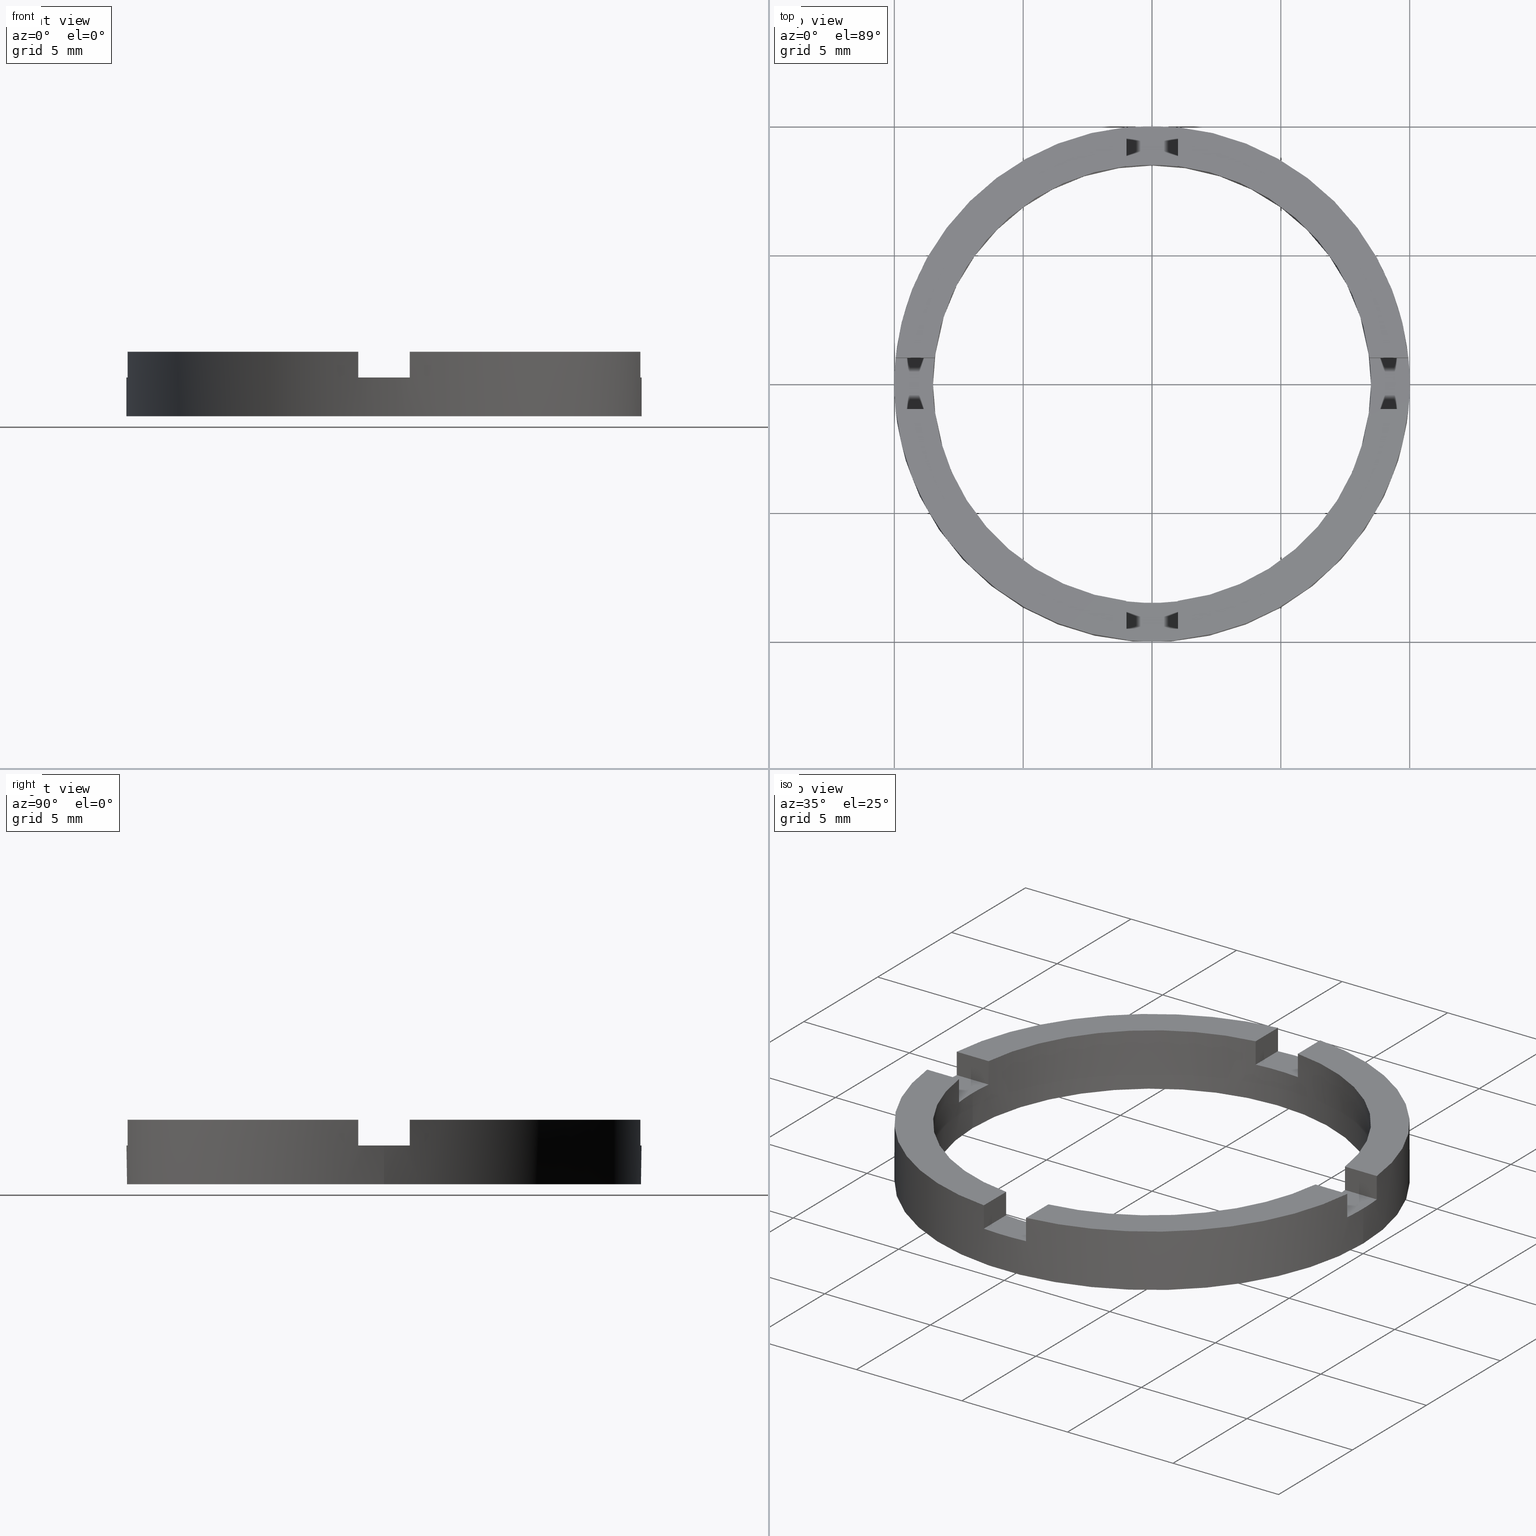
[diagram: canonical four-view strip — front | top / right | iso, engineering-drawing reading convention]
A machine part, canonical four-view strip (front | top / right | iso — engineering-drawing reading convention). The complete STEP part file that produces these views, byte-faithful:
ISO-10303-21;
HEADER;
FILE_DESCRIPTION (( 'STEP AP203' ),
    '1' );
FILE_NAME ('514047.step',
    '2024-12-26T02:32:29',
    ( 'MSI' ),
    ( '' ),
    'SwSTEP 2.0',
    'SolidWorks 2020',
    '' );
FILE_SCHEMA (( 'CONFIG_CONTROL_DESIGN' ));
ENDSEC;

DATA;
#1 = CIRCLE ( 'NONE', #529, 8.500000000000000000 ) ;
#2 = DIRECTION ( 'NONE',  ( -0.000000000000000000, -0.000000000000000000, -1.000000000000000000 ) ) ;
#3 = LINE ( 'NONE', #426, #544 ) ;
#4 = LINE ( 'NONE', #633, #526 ) ;
#5 = CYLINDRICAL_SURFACE ( 'NONE', #543, 10.00000000000000000 ) ;
#6 = CARTESIAN_POINT ( 'NONE',  ( 8.440971508067070417, 0.9999999999999672484, 1.500000000000000000 ) ) ;
#7 = LINE ( 'NONE', #25, #17 ) ;
#8 = DIRECTION ( 'NONE',  ( 0.000000000000000000, 0.000000000000000000, 1.000000000000000000 ) ) ;
#9 = CIRCLE ( 'NONE', #425, 10.00000000000000000 ) ;
#10 = DIRECTION ( 'NONE',  ( 1.000000000000000000, 0.000000000000000000, 0.000000000000000000 ) ) ;
#11 = AXIS2_PLACEMENT_3D ( 'NONE', #410, #569, #116 ) ;
#12 = CIRCLE ( 'NONE', #11, 10.00000000000000000 ) ;
#13 = LINE ( 'NONE', #228, #32 ) ;
#14 = FACE_OUTER_BOUND ( 'NONE', #464, .T. ) ;
#15 = LINE ( 'NONE', #646, #293 ) ;
#16 = CARTESIAN_POINT ( 'NONE',  ( -8.500000000000000000, 0.000000000000000000, 0.000000000000000000 ) ) ;
#17 = VECTOR ( 'NONE', #467, 1000.000000000000000 ) ;
#18 = AXIS2_PLACEMENT_3D ( 'NONE', #420, #508, #773 ) ;
#19 = VECTOR ( 'NONE', #775, 1000.000000000000000 ) ;
#20 = ADVANCED_FACE ( 'NONE', ( #321 ), #248, .T. ) ;
#21 = PERSON_AND_ORGANIZATION_ROLE ( 'design_supplier' ) ;
#22 = LINE ( 'NONE', #624, #532 ) ;
#23 = FACE_BOUND ( 'NONE', #195, .T. ) ;
#24 = LINE ( 'NONE', #771, #547 ) ;
#25 = CARTESIAN_POINT ( 'NONE',  ( 1.000000000000001332, -8.440971508067066864, 1.500000000000000000 ) ) ;
#26 = VECTOR ( 'NONE', #185, 1000.000000000000000 ) ;
#27 = LINE ( 'NONE', #733, #519 ) ;
#28 = DIRECTION ( 'NONE',  ( -0.000000000000000000, 0.000000000000000000, 1.000000000000000000 ) ) ;
#29 = CIRCLE ( 'NONE', #242, 8.500000000000000000 ) ;
#30 = LINE ( 'NONE', #477, #541 ) ;
#31 = DIRECTION ( 'NONE',  ( 1.000000000000000000, 0.000000000000000000, 0.000000000000000000 ) ) ;
#32 = VECTOR ( 'NONE', #221, 1000.000000000000000 ) ;
#33 = LINE ( 'NONE', #341, #264 ) ;
#34 = CARTESIAN_POINT ( 'NONE',  ( 0.000000000000000000, 0.000000000000000000, 2.500000000000000000 ) ) ;
#35 = FACE_OUTER_BOUND ( 'NONE', #377, .T. ) ;
#36 = DIRECTION ( 'NONE',  ( 1.000000000000000000, 0.000000000000000000, 0.000000000000000000 ) ) ;
#37 = CIRCLE ( 'NONE', #759, 8.500000000000000000 ) ;
#38 = VECTOR ( 'NONE', #699, 1000.000000000000000 ) ;
#39 = LINE ( 'NONE', #644, #551 ) ;
#40 = ADVANCED_FACE ( 'NONE', ( #607 ), #745, .T. ) ;
#41 = EDGE_CURVE ( 'NONE', #380, #243, #94, .T. ) ;
#42 = AXIS2_PLACEMENT_3D ( 'NONE', #230, #314, #262 ) ;
#43 = COORDINATED_UNIVERSAL_TIME_OFFSET ( 8, 0, .AHEAD. ) ;
#44 = CARTESIAN_POINT ( 'NONE',  ( 0.000000000000000000, 0.000000000000000000, 2.500000000000000000 ) ) ;
#45 = DIRECTION ( 'NONE',  ( -0.000000000000000000, -0.000000000000000000, 1.000000000000000000 ) ) ;
#46 = APPROVAL_DATE_TIME ( #567, #441 ) ;
#47 = ADVANCED_FACE ( 'NONE', ( #95 ), #533, .T. ) ;
#48 = PERSON_AND_ORGANIZATION ( #490, #312 ) ;
#49 = EDGE_CURVE ( 'NONE', #409, #141, #575, .T. ) ;
#50 = LOCAL_TIME ( 10, 32, 29.00000000000000000, #565 ) ;
#51 = AXIS2_PLACEMENT_3D ( 'NONE', #521, #59, #201 ) ;
#52 = APPROVAL_DATE_TIME ( #587, #72 ) ;
#53 = CARTESIAN_POINT ( 'NONE',  ( -9.949874371066195877, 1.000000000000036193, 1.500000000000000000 ) ) ;
#54 = DIRECTION ( 'NONE',  ( -0.000000000000000000, -0.000000000000000000, -1.000000000000000000 ) ) ;
#55 = APPROVAL_ROLE ( '' ) ;
#56 = APPROVAL_PERSON_ORGANIZATION ( #80, #441, #177 ) ;
#57 = EDGE_CURVE ( 'NONE', #217, #641, #584, .T. ) ;
#58 = PERSON_AND_ORGANIZATION ( #490, #312 ) ;
#59 = DIRECTION ( 'NONE',  ( 0.000000000000000000, 0.000000000000000000, 1.000000000000000000 ) ) ;
#60 = LOCAL_TIME ( 10, 32, 29.00000000000000000, #339 ) ;
#61 = EDGE_LOOP ( 'NONE', ( #346, #226, #414, #430, #433, #407 ) ) ;
#62 = AXIS2_PLACEMENT_3D ( 'NONE', #136, #626, #695 ) ;
#63 = VECTOR ( 'NONE', #735, 1000.000000000000000 ) ;
#64 = LOCAL_TIME ( 10, 32, 29.00000000000000000, #563 ) ;
#65 = ORIENTED_EDGE ( 'NONE', *, *, #702, .F. ) ;
#66 = DIRECTION ( 'NONE',  ( 1.000000000000000000, 0.000000000000000000, 0.000000000000000000 ) ) ;
#67 = SHAPE_DEFINITION_REPRESENTATION ( #438, #209 ) ;
#68 = ORIENTED_EDGE ( 'NONE', *, *, #713, .F. ) ;
#69 = CARTESIAN_POINT ( 'NONE',  ( -0.9999999999999986677, -9.949874371066199430, 1.500000000000000000 ) ) ;
#70 = EDGE_LOOP ( 'NONE', ( #98, #710, #100, #708 ) ) ;
#71 = VECTOR ( 'NONE', #171, 1000.000000000000000 ) ;
#72 = APPROVAL ( #559, 'δָ��' ) ;
#73 = CALENDAR_DATE ( 2024, 26, 12 ) ;
#74 = VECTOR ( 'NONE', #294, 1000.000000000000000 ) ;
#75 = CARTESIAN_POINT ( 'NONE',  ( 0.000000000000000000, 0.000000000000000000, 2.500000000000000000 ) ) ;
#76 = DATE_AND_TIME ( #574, #311 ) ;
#77 = VERTEX_POINT ( 'NONE', #482 ) ;
#78 = PERSON_AND_ORGANIZATION ( #490, #312 ) ;
#79 = LINE ( 'NONE', #520, #337 ) ;
#80 = PERSON_AND_ORGANIZATION ( #490, #312 ) ;
#81 = LINE ( 'NONE', #562, #71 ) ;
#82 = DIRECTION ( 'NONE',  ( 0.000000000000000000, 1.000000000000000000, -0.000000000000000000 ) ) ;
#83 = DATE_AND_TIME ( #571, #50 ) ;
#84 = CIRCLE ( 'NONE', #504, 8.500000000000000000 ) ;
#85 = CIRCLE ( 'NONE', #769, 8.500000000000000000 ) ;
#86 = CARTESIAN_POINT ( 'NONE',  ( 0.000000000000000000, 0.000000000000000000, 0.000000000000000000 ) ) ;
#87 = CARTESIAN_POINT ( 'NONE',  ( 1.000000000000001332, 9.949874371066199430, 1.500000000000000000 ) ) ;
#88 = EDGE_LOOP ( 'NONE', ( #680, #155, #709, #698 ) ) ;
#89 = VERTEX_POINT ( 'NONE', #685 ) ;
#90 = ORIENTED_EDGE ( 'NONE', *, *, #306, .F. ) ;
#91 = ORIENTED_EDGE ( 'NONE', *, *, #539, .T. ) ;
#92 = CARTESIAN_POINT ( 'NONE',  ( 1.000000000000001332, 0.000000000000000000, 1.500000000000000000 ) ) ;
#93 = EDGE_CURVE ( 'NONE', #241, #767, #323, .T. ) ;
#94 = LINE ( 'NONE', #315, #590 ) ;
#95 = FACE_OUTER_BOUND ( 'NONE', #611, .T. ) ;
#96 = DIRECTION ( 'NONE',  ( -1.000000000000000000, 0.000000000000000000, 0.000000000000000000 ) ) ;
#97 = VECTOR ( 'NONE', #783, 1000.000000000000000 ) ;
#98 = ORIENTED_EDGE ( 'NONE', *, *, #637, .F. ) ;
#99 = DIRECTION ( 'NONE',  ( 0.000000000000000000, 1.000000000000000000, -0.000000000000000000 ) ) ;
#100 = ORIENTED_EDGE ( 'NONE', *, *, #364, .T. ) ;
#101 = ADVANCED_FACE ( 'NONE', ( #345 ), #579, .F. ) ;
#102 = VECTOR ( 'NONE', #256, 1000.000000000000000 ) ;
#103 = EDGE_CURVE ( 'NONE', #393, #327, #81, .T. ) ;
#104 = LINE ( 'NONE', #737, #620 ) ;
#105 = AXIS2_PLACEMENT_3D ( 'NONE', #629, #8, #215 ) ;
#106 = VECTOR ( 'NONE', #2, 1000.000000000000000 ) ;
#107 = DIRECTION ( 'NONE',  ( -0.000000000000000000, -0.000000000000000000, 1.000000000000000000 ) ) ;
#108 = FACE_OUTER_BOUND ( 'NONE', #762, .T. ) ;
#109 = ADVANCED_FACE ( 'NONE', ( #332 ), #379, .T. ) ;
#110 = SECURITY_CLASSIFICATION_LEVEL ( 'unclassified' ) ;
#111 = EDGE_CURVE ( 'NONE', #400, #418, #593, .T. ) ;
#112 = CARTESIAN_POINT ( 'NONE',  ( 0.000000000000000000, 0.000000000000000000, 1.500000000000000000 ) ) ;
#113 = AXIS2_PLACEMENT_3D ( 'NONE', #475, #281, #357 ) ;
#114 = PLANE ( 'NONE',  #671 ) ;
#115 = DIRECTION ( 'NONE',  ( 1.000000000000000000, 0.000000000000000000, 0.000000000000000000 ) ) ;
#116 = DIRECTION ( 'NONE',  ( 1.000000000000000000, 0.000000000000000000, 0.000000000000000000 ) ) ;
#117 = CC_DESIGN_APPROVAL ( #754, ( #164 ) ) ;
#118 = DIRECTION ( 'NONE',  ( 0.000000000000000000, -0.000000000000000000, -1.000000000000000000 ) ) ;
#119 = DIRECTION ( 'NONE',  ( 1.000000000000000000, 0.000000000000000000, 0.000000000000000000 ) ) ;
#120 = CARTESIAN_POINT ( 'NONE',  ( 0.000000000000000000, 0.000000000000000000, 2.500000000000000000 ) ) ;
#121 = AXIS2_PLACEMENT_3D ( 'NONE', #347, #355, #273 ) ;
#122 = ORIENTED_EDGE ( 'NONE', *, *, #702, .T. ) ;
#123 = ORIENTED_EDGE ( 'NONE', *, *, #259, .T. ) ;
#124 = EDGE_LOOP ( 'NONE', ( #383, #739, #178, #134 ) ) ;
#125 = DIRECTION ( 'NONE',  ( 0.000000000000000000, 1.000000000000000000, -0.000000000000000000 ) ) ;
#126 = ORIENTED_EDGE ( 'NONE', *, *, #259, .F. ) ;
#127 = ORIENTED_EDGE ( 'NONE', *, *, #57, .T. ) ;
#128 = VERTEX_POINT ( 'NONE', #214 ) ;
#129 = FACE_OUTER_BOUND ( 'NONE', #124, .T. ) ;
#130 = EDGE_LOOP ( 'NONE', ( #154, #123, #161, #166, #683, #697, #374, #411, #449, #681, #417, #163 ) ) ;
#131 = EDGE_CURVE ( 'NONE', #406, #159, #325, .T. ) ;
#132 = DIRECTION ( 'NONE',  ( 1.000000000000000000, 0.000000000000000000, 0.000000000000000000 ) ) ;
#133 = ORIENTED_EDGE ( 'NONE', *, *, #550, .T. ) ;
#134 = ORIENTED_EDGE ( 'NONE', *, *, #103, .T. ) ;
#135 = ORIENTED_EDGE ( 'NONE', *, *, #111, .T. ) ;
#136 = CARTESIAN_POINT ( 'NONE',  ( 3.751339516799841397E-15, 0.9999999999999988898, 1.500000000000000000 ) ) ;
#137 = ORIENTED_EDGE ( 'NONE', *, *, #111, .F. ) ;
#138 = DIRECTION ( 'NONE',  ( 0.000000000000000000, 0.000000000000000000, -1.000000000000000000 ) ) ;
#139 = CARTESIAN_POINT ( 'NONE',  ( -0.9999999999999986677, -9.949874371066199430, 1.500000000000000000 ) ) ;
#140 = EDGE_LOOP ( 'NONE', ( #334, #751, #650, #157 ) ) ;
#141 = VERTEX_POINT ( 'NONE', #660 ) ;
#142 = ORIENTED_EDGE ( 'NONE', *, *, #456, .F. ) ;
#143 = ORIENTED_EDGE ( 'NONE', *, *, #627, .F. ) ;
#144 = DIRECTION ( 'NONE',  ( -0.000000000000000000, -0.000000000000000000, -1.000000000000000000 ) ) ;
#145 = AXIS2_PLACEMENT_3D ( 'NONE', #474, #210, #670 ) ;
#146 = ORIENTED_EDGE ( 'NONE', *, *, #220, .F. ) ;
#147 = ORIENTED_EDGE ( 'NONE', *, *, #772, .F. ) ;
#148 = DIRECTION ( 'NONE',  ( 1.000000000000000000, 0.000000000000000000, 0.000000000000000000 ) ) ;
#149 = ORIENTED_EDGE ( 'NONE', *, *, #180, .T. ) ;
#150 = ORIENTED_EDGE ( 'NONE', *, *, #213, .T. ) ;
#151 = ORIENTED_EDGE ( 'NONE', *, *, #766, .F. ) ;
#152 = CARTESIAN_POINT ( 'NONE',  ( 0.000000000000000000, 0.000000000000000000, 1.500000000000000000 ) ) ;
#153 = EDGE_CURVE ( 'NONE', #159, #767, #585, .T. ) ;
#154 = ORIENTED_EDGE ( 'NONE', *, *, #233, .F. ) ;
#155 = ORIENTED_EDGE ( 'NONE', *, *, #370, .F. ) ;
#156 = DIRECTION ( 'NONE',  ( 1.000000000000000000, 0.000000000000000000, 0.000000000000000000 ) ) ;
#157 = ORIENTED_EDGE ( 'NONE', *, *, #734, .T. ) ;
#158 = CARTESIAN_POINT ( 'NONE',  ( -0.9999999999999986677, 9.949874371066199430, 2.500000000000000000 ) ) ;
#159 = VERTEX_POINT ( 'NONE', #675 ) ;
#160 = ORIENTED_EDGE ( 'NONE', *, *, #572, .T. ) ;
#161 = ORIENTED_EDGE ( 'NONE', *, *, #299, .F. ) ;
#162 = ORIENTED_EDGE ( 'NONE', *, *, #747, .T. ) ;
#163 = ORIENTED_EDGE ( 'NONE', *, *, #103, .F. ) ;
#164 = SECURITY_CLASSIFICATION ( '', '', #110 ) ;
#165 = CARTESIAN_POINT ( 'NONE',  ( 0.000000000000000000, 0.000000000000000000, 1.500000000000000000 ) ) ;
#166 = ORIENTED_EDGE ( 'NONE', *, *, #572, .F. ) ;
#167 = VERTEX_POINT ( 'NONE', #514 ) ;
#168 = DIRECTION ( 'NONE',  ( -0.000000000000000000, 0.000000000000000000, 1.000000000000000000 ) ) ;
#169 = AXIS2_PLACEMENT_3D ( 'NONE', #112, #168, #183 ) ;
#170 = ORIENTED_EDGE ( 'NONE', *, *, #756, .F. ) ;
#171 = DIRECTION ( 'NONE',  ( -0.000000000000000000, -0.000000000000000000, 1.000000000000000000 ) ) ;
#172 = ADVANCED_FACE ( 'NONE', ( #613 ), #250, .F. ) ;
#173 = DATE_TIME_ROLE ( 'creation_date' ) ;
#174 = DIRECTION ( 'NONE',  ( -1.000000000000000000, 0.000000000000000000, 0.000000000000000000 ) ) ;
#175 = VERTEX_POINT ( 'NONE', #527 ) ;
#176 = ORIENTED_EDGE ( 'NONE', *, *, #632, .T. ) ;
#177 = APPROVAL_ROLE ( '' ) ;
#178 = ORIENTED_EDGE ( 'NONE', *, *, #461, .F. ) ;
#179 = ADVANCED_FACE ( 'NONE', ( #588 ), #483, .T. ) ;
#180 = EDGE_CURVE ( 'NONE', #243, #390, #356, .T. ) ;
#181 = EDGE_CURVE ( 'NONE', #77, #141, #84, .T. ) ;
#182 = ORIENTED_EDGE ( 'NONE', *, *, #552, .T. ) ;
#183 = DIRECTION ( 'NONE',  ( 1.000000000000000000, 0.000000000000000000, 0.000000000000000000 ) ) ;
#184 = EDGE_LOOP ( 'NONE', ( #126, #151, #427, #655, #696, #408, #236, #149, #603, #90, #160, #147 ) ) ;
#185 = DIRECTION ( 'NONE',  ( -0.000000000000000000, -0.000000000000000000, -1.000000000000000000 ) ) ;
#186 = ORIENTED_EDGE ( 'NONE', *, *, #299, .T. ) ;
#187 = CARTESIAN_POINT ( 'NONE',  ( -0.9999999999999986677, 0.000000000000000000, 1.500000000000000000 ) ) ;
#188 = EDGE_LOOP ( 'NONE', ( #191, #137 ) ) ;
#189 = AXIS2_PLACEMENT_3D ( 'NONE', #257, #545, #453 ) ;
#190 = DIRECTION ( 'NONE',  ( 0.000000000000000000, -0.000000000000000000, -1.000000000000000000 ) ) ;
#191 = ORIENTED_EDGE ( 'NONE', *, *, #213, .F. ) ;
#192 = CARTESIAN_POINT ( 'NONE',  ( 0.000000000000000000, 0.000000000000000000, 1.500000000000000000 ) ) ;
#193 = ORIENTED_EDGE ( 'NONE', *, *, #181, .T. ) ;
#194 = CARTESIAN_POINT ( 'NONE',  ( -0.9999999999999986677, 0.000000000000000000, 1.500000000000000000 ) ) ;
#195 = EDGE_LOOP ( 'NONE', ( #186, #437 ) ) ;
#196 = ORIENTED_EDGE ( 'NONE', *, *, #180, .F. ) ;
#197 = ORIENTED_EDGE ( 'NONE', *, *, #93, .T. ) ;
#198 = ADVANCED_FACE ( 'NONE', ( #614 ), #666, .F. ) ;
#199 = PLANE ( 'NONE',  #263 ) ;
#200 = DIRECTION ( 'NONE',  ( -0.000000000000000000, -0.000000000000000000, 1.000000000000000000 ) ) ;
#201 = DIRECTION ( 'NONE',  ( 1.000000000000000000, 0.000000000000000000, -0.000000000000000000 ) ) ;
#202 = ORIENTED_EDGE ( 'NONE', *, *, #628, .F. ) ;
#203 = DIRECTION ( 'NONE',  ( 1.000000000000000000, -3.729655473350134464E-15, 0.000000000000000000 ) ) ;
#204 = CARTESIAN_POINT ( 'NONE',  ( 0.000000000000000000, 0.000000000000000000, 2.500000000000000000 ) ) ;
#205 = CARTESIAN_POINT ( 'NONE',  ( 0.000000000000000000, 0.000000000000000000, 2.500000000000000000 ) ) ;
#206 =( GEOMETRIC_REPRESENTATION_CONTEXT ( 3 ) GLOBAL_UNCERTAINTY_ASSIGNED_CONTEXT ( ( #625 ) ) GLOBAL_UNIT_ASSIGNED_CONTEXT ( ( #507, #419, #468 ) ) REPRESENTATION_CONTEXT ( 'NONE', 'WORKASPACE' ) );
#207 = CARTESIAN_POINT ( 'NONE',  ( 0.000000000000000000, 0.000000000000000000, 1.500000000000000000 ) ) ;
#208 = CARTESIAN_POINT ( 'NONE',  ( -3.729655473350139197E-15, -1.000000000000001110, 2.500000000000000000 ) ) ;
#209 = ADVANCED_BREP_SHAPE_REPRESENTATION ( '514047', ( #606, #331 ), #206 ) ;
#210 = DIRECTION ( 'NONE',  ( -0.000000000000000000, 0.000000000000000000, 1.000000000000000000 ) ) ;
#211 = EDGE_LOOP ( 'NONE', ( #730, #423, #416, #731, #701, #386, #721, #385, #723, #378, #447, #150 ) ) ;
#212 = AXIS2_PLACEMENT_3D ( 'NONE', #192, #509, #36 ) ;
#213 = EDGE_CURVE ( 'NONE', #418, #400, #576, .T. ) ;
#214 = CARTESIAN_POINT ( 'NONE',  ( -9.949874371066202983, -0.9999999999999640288, 1.500000000000000000 ) ) ;
#215 = DIRECTION ( 'NONE',  ( 1.000000000000000000, 0.000000000000000000, -0.000000000000000000 ) ) ;
#216 = DIRECTION ( 'NONE',  ( -0.000000000000000000, 0.000000000000000000, 1.000000000000000000 ) ) ;
#217 = VERTEX_POINT ( 'NONE', #469 ) ;
#218 = ORIENTED_EDGE ( 'NONE', *, *, #637, .T. ) ;
#219 = EDGE_CURVE ( 'NONE', #373, #609, #336, .T. ) ;
#220 = EDGE_CURVE ( 'NONE', #647, #692, #79, .T. ) ;
#221 = DIRECTION ( 'NONE',  ( -0.000000000000000000, -0.000000000000000000, 1.000000000000000000 ) ) ;
#222 = CARTESIAN_POINT ( 'NONE',  ( 0.000000000000000000, 0.000000000000000000, 1.500000000000000000 ) ) ;
#223 = ADVANCED_FACE ( 'NONE', ( #342 ), #435, .T. ) ;
#224 = PRODUCT_DEFINITION_FORMATION_WITH_SPECIFIED_SOURCE ( '�κ�', '', #782, .NOT_KNOWN. ) ;
#225 = DIRECTION ( 'NONE',  ( 0.000000000000000000, 1.000000000000000000, -0.000000000000000000 ) ) ;
#226 = ORIENTED_EDGE ( 'NONE', *, *, #766, .T. ) ;
#227 = DATE_TIME_ROLE ( 'classification_date' ) ;
#228 = CARTESIAN_POINT ( 'NONE',  ( -9.949874371066202983, -0.9999999999999640288, 1.500000000000000000 ) ) ;
#229 = PERSON_AND_ORGANIZATION_ROLE ( 'classification_officer' ) ;
#230 = CARTESIAN_POINT ( 'NONE',  ( 3.751339516799841397E-15, 0.9999999999999988898, 1.500000000000000000 ) ) ;
#231 = ORIENTED_EDGE ( 'NONE', *, *, #247, .T. ) ;
#232 = CARTESIAN_POINT ( 'NONE',  ( 1.000000000000001332, -9.949874371066199430, 1.500000000000000000 ) ) ;
#233 = EDGE_CURVE ( 'NONE', #678, #393, #85, .T. ) ;
#234 = DIRECTION ( 'NONE',  ( 0.000000000000000000, 0.000000000000000000, 1.000000000000000000 ) ) ;
#235 = AXIS2_PLACEMENT_3D ( 'NONE', #396, #462, #752 ) ;
#236 = ORIENTED_EDGE ( 'NONE', *, *, #41, .T. ) ;
#237 = DIRECTION ( 'NONE',  ( 1.000000000000000000, 0.000000000000000000, 0.000000000000000000 ) ) ;
#238 = DIRECTION ( 'NONE',  ( -0.000000000000000000, -0.000000000000000000, 1.000000000000000000 ) ) ;
#239 = APPLICATION_CONTEXT ( 'configuration controlled 3d designs of mechanical parts and assemblies' ) ;
#240 = DIRECTION ( 'NONE',  ( -0.000000000000000000, -0.000000000000000000, 1.000000000000000000 ) ) ;
#241 = VERTEX_POINT ( 'NONE', #679 ) ;
#242 = AXIS2_PLACEMENT_3D ( 'NONE', #222, #330, #580 ) ;
#243 = VERTEX_POINT ( 'NONE', #252 ) ;
#244 = EDGE_CURVE ( 'NONE', #694, #768, #344, .T. ) ;
#245 = DIRECTION ( 'NONE',  ( 1.000000000000000000, 0.000000000000000000, -0.000000000000000000 ) ) ;
#246 = ORIENTED_EDGE ( 'NONE', *, *, #255, .F. ) ;
#247 = EDGE_CURVE ( 'NONE', #175, #672, #104, .T. ) ;
#248 = PLANE ( 'NONE',  #599 ) ;
#249 = AXIS2_PLACEMENT_3D ( 'NONE', #445, #592, #138 ) ;
#250 = PLANE ( 'NONE',  #249 ) ;
#251 = DIRECTION ( 'NONE',  ( 1.000000000000000000, 0.000000000000000000, 0.000000000000000000 ) ) ;
#252 = CARTESIAN_POINT ( 'NONE',  ( -0.9999999999999986677, 8.440971508067066864, 2.500000000000000000 ) ) ;
#253 = CC_DESIGN_PERSON_AND_ORGANIZATION_ASSIGNMENT ( #324, #229, ( #164 ) ) ;
#254 = CARTESIAN_POINT ( 'NONE',  ( 0.000000000000000000, 0.000000000000000000, 2.500000000000000000 ) ) ;
#255 = EDGE_CURVE ( 'NONE', #167, #436, #621, .T. ) ;
#256 = DIRECTION ( 'NONE',  ( 0.000000000000000000, 1.000000000000000000, -0.000000000000000000 ) ) ;
#257 = CARTESIAN_POINT ( 'NONE',  ( 0.000000000000000000, 0.000000000000000000, 1.500000000000000000 ) ) ;
#258 = DIRECTION ( 'NONE',  ( 0.000000000000000000, 0.000000000000000000, 1.000000000000000000 ) ) ;
#259 = EDGE_CURVE ( 'NONE', #678, #581, #361, .T. ) ;
#260 = DIRECTION ( 'NONE',  ( 1.000000000000000000, 0.000000000000000000, 0.000000000000000000 ) ) ;
#261 = EDGE_CURVE ( 'NONE', #472, #399, #615, .T. ) ;
#262 = DIRECTION ( 'NONE',  ( 1.000000000000000000, -3.751339516799845342E-15, 0.000000000000000000 ) ) ;
#263 = AXIS2_PLACEMENT_3D ( 'NONE', #289, #366, #245 ) ;
#264 = VECTOR ( 'NONE', #99, 1000.000000000000000 ) ;
#265 = CIRCLE ( 'NONE', #715, 10.00000000000000000 ) ;
#266 = CARTESIAN_POINT ( 'NONE',  ( -0.9999999999999986677, -9.949874371066199430, 2.500000000000000000 ) ) ;
#267 = FACE_OUTER_BOUND ( 'NONE', #88, .T. ) ;
#268 = CYLINDRICAL_SURFACE ( 'NONE', #375, 10.00000000000000000 ) ;
#269 = ADVANCED_FACE ( 'NONE', ( #363 ), #743, .T. ) ;
#270 = PRODUCT_RELATED_PRODUCT_CATEGORY ( 'detail', '', ( #782 ) ) ;
#271 = AXIS2_PLACEMENT_3D ( 'NONE', #204, #443, #525 ) ;
#272 = CIRCLE ( 'NONE', #300, 10.00000000000000000 ) ;
#273 = DIRECTION ( 'NONE',  ( 1.000000000000000000, -3.729655473350134464E-15, 0.000000000000000000 ) ) ;
#274 = CIRCLE ( 'NONE', #286, 10.00000000000000000 ) ;
#275 = LINE ( 'NONE', #432, #19 ) ;
#276 = CARTESIAN_POINT ( 'NONE',  ( -8.500000000000000000, 0.000000000000000000, 2.500000000000000000 ) ) ;
#277 = FACE_OUTER_BOUND ( 'NONE', #130, .T. ) ;
#278 = CC_DESIGN_APPROVAL ( #441, ( #510 ) ) ;
#279 = PLANE ( 'NONE',  #121 ) ;
#280 = VECTOR ( 'NONE', #602, 1000.000000000000000 ) ;
#281 = DIRECTION ( 'NONE',  ( -3.729655473350134464E-15, -1.000000000000000000, 0.000000000000000000 ) ) ;
#282 = CARTESIAN_POINT ( 'NONE',  ( -3.729655473350139197E-15, -1.000000000000001110, 1.500000000000000000 ) ) ;
#283 = CIRCLE ( 'NONE', #450, 8.500000000000000000 ) ;
#284 = MECHANICAL_CONTEXT ( 'NONE', #239, 'mechanical' ) ;
#285 = CIRCLE ( 'NONE', #498, 8.500000000000000000 ) ;
#286 = AXIS2_PLACEMENT_3D ( 'NONE', #556, #28, #10 ) ;
#287 = CIRCLE ( 'NONE', #742, 8.500000000000000000 ) ;
#288 = ADVANCED_FACE ( 'NONE', ( #108 ), #554, .T. ) ;
#289 = CARTESIAN_POINT ( 'NONE',  ( 0.000000000000000000, 0.000000000000000000, 2.500000000000000000 ) ) ;
#290 = VECTOR ( 'NONE', #758, 1000.000000000000000 ) ;
#291 = DIRECTION ( 'NONE',  ( 1.000000000000000000, 0.000000000000000000, 0.000000000000000000 ) ) ;
#292 = FACE_OUTER_BOUND ( 'NONE', #188, .T. ) ;
#293 = VECTOR ( 'NONE', #421, 1000.000000000000000 ) ;
#294 = DIRECTION ( 'NONE',  ( 1.000000000000000000, -3.751339516799845342E-15, 0.000000000000000000 ) ) ;
#295 = VECTOR ( 'NONE', #349, 1000.000000000000000 ) ;
#296 = DIRECTION ( 'NONE',  ( -1.000000000000000000, 0.000000000000000000, 0.000000000000000000 ) ) ;
#297 = VECTOR ( 'NONE', #225, 1000.000000000000000 ) ;
#298 = CIRCLE ( 'NONE', #617, 10.00000000000000000 ) ;
#299 = EDGE_CURVE ( 'NONE', #649, #581, #618, .T. ) ;
#300 = AXIS2_PLACEMENT_3D ( 'NONE', #577, #654, #724 ) ;
#301 = LINE ( 'NONE', #457, #38 ) ;
#302 = DIRECTION ( 'NONE',  ( 0.000000000000000000, 0.000000000000000000, -1.000000000000000000 ) ) ;
#303 = LINE ( 'NONE', #92, #297 ) ;
#304 = CARTESIAN_POINT ( 'NONE',  ( 9.949874371066195877, -1.000000000000038192, 2.500000000000000000 ) ) ;
#305 = LINE ( 'NONE', #693, #553 ) ;
#306 = EDGE_CURVE ( 'NONE', #329, #403, #367, .T. ) ;
#307 = CARTESIAN_POINT ( 'NONE',  ( 8.440971508067063311, -1.000000000000032641, 1.500000000000000000 ) ) ;
#308 = AXIS2_PLACEMENT_3D ( 'NONE', #648, #118, #31 ) ;
#309 = CARTESIAN_POINT ( 'NONE',  ( 8.500000000000000000, 1.040949779275250140E-15, 2.500000000000000000 ) ) ;
#310 = PERSON_AND_ORGANIZATION ( #490, #312 ) ;
#311 = LOCAL_TIME ( 10, 32, 29.00000000000000000, #328 ) ;
#312 = ORGANIZATION ( 'δָ��', 'δָ��', '' ) ;
#313 = CARTESIAN_POINT ( 'NONE',  ( -0.9999999999999986677, 0.000000000000000000, 2.500000000000000000 ) ) ;
#314 = DIRECTION ( 'NONE',  ( -3.751339516799845342E-15, -1.000000000000000000, 0.000000000000000000 ) ) ;
#315 = CARTESIAN_POINT ( 'NONE',  ( -0.9999999999999986677, 8.440971508067066864, 1.500000000000000000 ) ) ;
#316 = DIRECTION ( 'NONE',  ( 0.000000000000000000, 0.000000000000000000, 1.000000000000000000 ) ) ;
#317 = PERSON_AND_ORGANIZATION ( #490, #312 ) ;
#318 = DIRECTION ( 'NONE',  ( 1.000000000000000000, -3.751339516799845342E-15, 0.000000000000000000 ) ) ;
#319 = APPROVAL_PERSON_ORGANIZATION ( #570, #72, #704 ) ;
#320 = CALENDAR_DATE ( 2024, 26, 12 ) ;
#321 = FACE_OUTER_BOUND ( 'NONE', #442, .T. ) ;
#322 = LOCAL_TIME ( 10, 32, 29.00000000000000000, #43 ) ;
#323 = LINE ( 'NONE', #738, #97 ) ;
#324 = PERSON_AND_ORGANIZATION ( #490, #312 ) ;
#325 = LINE ( 'NONE', #6, #598 ) ;
#326 = DIRECTION ( 'NONE',  ( 0.000000000000000000, -0.000000000000000000, -1.000000000000000000 ) ) ;
#327 = VERTEX_POINT ( 'NONE', #415 ) ;
#328 = COORDINATED_UNIVERSAL_TIME_OFFSET ( 8, 0, .AHEAD. ) ;
#329 = VERTEX_POINT ( 'NONE', #564 ) ;
#330 = DIRECTION ( 'NONE',  ( 0.000000000000000000, -0.000000000000000000, -1.000000000000000000 ) ) ;
#331 = AXIS2_PLACEMENT_3D ( 'NONE', #503, #573, #651 ) ;
#332 = FACE_OUTER_BOUND ( 'NONE', #486, .T. ) ;
#333 = DIRECTION ( 'NONE',  ( 0.000000000000000000, 0.000000000000000000, 1.000000000000000000 ) ) ;
#334 = ORIENTED_EDGE ( 'NONE', *, *, #364, .F. ) ;
#335 = DATE_AND_TIME ( #595, #322 ) ;
#336 = LINE ( 'NONE', #53, #591 ) ;
#337 = VECTOR ( 'NONE', #776, 1000.000000000000000 ) ;
#338 = ADVANCED_FACE ( 'NONE', ( #368 ), #114, .T. ) ;
#339 = COORDINATED_UNIVERSAL_TIME_OFFSET ( 8, 0, .AHEAD. ) ;
#340 = ORIENTED_EDGE ( 'NONE', *, *, #689, .T. ) ;
#341 = CARTESIAN_POINT ( 'NONE',  ( -0.9999999999999986677, 0.000000000000000000, 2.500000000000000000 ) ) ;
#342 = FACE_OUTER_BOUND ( 'NONE', #140, .T. ) ;
#343 = DIRECTION ( 'NONE',  ( 1.000000000000000000, 1.243449787580175483E-14, 0.000000000000000000 ) ) ;
#344 = LINE ( 'NONE', #313, #600 ) ;
#345 = FACE_OUTER_BOUND ( 'NONE', #184, .T. ) ;
#346 = ORIENTED_EDGE ( 'NONE', *, *, #765, .F. ) ;
#347 = CARTESIAN_POINT ( 'NONE',  ( -3.729655473350139197E-15, -1.000000000000001110, 1.500000000000000000 ) ) ;
#348 = ORIENTED_EDGE ( 'NONE', *, *, #502, .T. ) ;
#349 = DIRECTION ( 'NONE',  ( -0.000000000000000000, -0.000000000000000000, -1.000000000000000000 ) ) ;
#350 = DESIGN_CONTEXT ( 'detailed design', #717, 'design' ) ;
#351 = EDGE_LOOP ( 'NONE', ( #674, #182, #135, #690, #725, #687, #388, #143, #454, #398, #170, #491 ) ) ;
#352 = AXIS2_PLACEMENT_3D ( 'NONE', #622, #746, #691 ) ;
#353 = ORIENTED_EDGE ( 'NONE', *, *, #49, .F. ) ;
#354 = ORIENTED_EDGE ( 'NONE', *, *, #244, .F. ) ;
#355 = DIRECTION ( 'NONE',  ( -3.729655473350134464E-15, -1.000000000000000000, 0.000000000000000000 ) ) ;
#356 = CIRCLE ( 'NONE', #749, 8.500000000000000000 ) ;
#357 = DIRECTION ( 'NONE',  ( 1.000000000000000000, -3.729655473350134464E-15, 0.000000000000000000 ) ) ;
#358 = CARTESIAN_POINT ( 'NONE',  ( 0.000000000000000000, 0.000000000000000000, 2.500000000000000000 ) ) ;
#359 = ORIENTED_EDGE ( 'NONE', *, *, #719, .F. ) ;
#360 = DIRECTION ( 'NONE',  ( 1.000000000000000000, 0.000000000000000000, 0.000000000000000000 ) ) ;
#361 = LINE ( 'NONE', #309, #106 ) ;
#362 = CC_DESIGN_PERSON_AND_ORGANIZATION_ASSIGNMENT ( #310, #493, ( #510 ) ) ;
#363 = FACE_OUTER_BOUND ( 'NONE', #61, .T. ) ;
#364 = EDGE_CURVE ( 'NONE', #380, #605, #623, .T. ) ;
#365 = VECTOR ( 'NONE', #619, 1000.000000000000000 ) ;
#366 = DIRECTION ( 'NONE',  ( 0.000000000000000000, 0.000000000000000000, 1.000000000000000000 ) ) ;
#367 = CIRCLE ( 'NONE', #308, 8.500000000000000000 ) ;
#368 = FACE_OUTER_BOUND ( 'NONE', #70, .T. ) ;
#369 = CARTESIAN_POINT ( 'NONE',  ( -10.00000000000000000, 0.000000000000000000, 0.000000000000000000 ) ) ;
#370 = EDGE_CURVE ( 'NONE', #77, #436, #7, .T. ) ;
#371 = AXIS2_PLACEMENT_3D ( 'NONE', #757, #216, #630 ) ;
#372 = CARTESIAN_POINT ( 'NONE',  ( -8.440971508067063311, 1.000000000000030642, 1.500000000000000000 ) ) ;
#373 = VERTEX_POINT ( 'NONE', #506 ) ;
#374 = ORIENTED_EDGE ( 'NONE', *, *, #456, .T. ) ;
#375 = AXIS2_PLACEMENT_3D ( 'NONE', #358, #54, #296 ) ;
#376 = DIRECTION ( 'NONE',  ( 1.000000000000000000, -3.729655473350134464E-15, 0.000000000000000000 ) ) ;
#377 = EDGE_LOOP ( 'NONE', ( #635, #391, #657, #197 ) ) ;
#378 = ORIENTED_EDGE ( 'NONE', *, *, #673, .F. ) ;
#379 = PLANE ( 'NONE',  #189 ) ;
#380 = VERTEX_POINT ( 'NONE', #631 ) ;
#381 = EDGE_CURVE ( 'NONE', #380, #175, #29, .T. ) ;
#382 = ORIENTED_EDGE ( 'NONE', *, *, #429, .T. ) ;
#383 = ORIENTED_EDGE ( 'NONE', *, *, #511, .T. ) ;
#384 = AXIS2_PLACEMENT_3D ( 'NONE', #770, #535, #302 ) ;
#385 = ORIENTED_EDGE ( 'NONE', *, *, #394, .F. ) ;
#386 = ORIENTED_EDGE ( 'NONE', *, *, #502, .F. ) ;
#387 = ORIENTED_EDGE ( 'NONE', *, *, #57, .F. ) ;
#388 = ORIENTED_EDGE ( 'NONE', *, *, #550, .F. ) ;
#389 = DIRECTION ( 'NONE',  ( 1.000000000000000000, -1.509903313490213211E-14, 0.000000000000000000 ) ) ;
#390 = VERTEX_POINT ( 'NONE', #446 ) ;
#391 = ORIENTED_EDGE ( 'NONE', *, *, #131, .F. ) ;
#392 = CC_DESIGN_DATE_AND_TIME_ASSIGNMENT ( #335, #173, ( #510 ) ) ;
#393 = VERTEX_POINT ( 'NONE', #307 ) ;
#394 = EDGE_CURVE ( 'NONE', #217, #694, #9, .T. ) ;
#395 = ORIENTED_EDGE ( 'NONE', *, *, #458, .T. ) ;
#396 = CARTESIAN_POINT ( 'NONE',  ( 0.000000000000000000, 0.000000000000000000, 2.500000000000000000 ) ) ;
#397 = ADVANCED_FACE ( 'NONE', ( #516 ), #5, .T. ) ;
#398 = ORIENTED_EDGE ( 'NONE', *, *, #220, .T. ) ;
#399 = VERTEX_POINT ( 'NONE', #304 ) ;
#400 = VERTEX_POINT ( 'NONE', #616 ) ;
#401 = ORIENTED_EDGE ( 'NONE', *, *, #394, .T. ) ;
#402 = CARTESIAN_POINT ( 'NONE',  ( 1.000000000000001332, 9.949874371066199430, 2.500000000000000000 ) ) ;
#403 = VERTEX_POINT ( 'NONE', #372 ) ;
#404 = ADVANCED_FACE ( 'NONE', ( #267 ), #439, .F. ) ;
#405 = CARTESIAN_POINT ( 'NONE',  ( 1.000000000000001332, -8.440971508067066864, 2.500000000000000000 ) ) ;
#406 = VERTEX_POINT ( 'NONE', #736 ) ;
#407 = ORIENTED_EDGE ( 'NONE', *, *, #740, .T. ) ;
#408 = ORIENTED_EDGE ( 'NONE', *, *, #381, .F. ) ;
#409 = VERTEX_POINT ( 'NONE', #69 ) ;
#410 = CARTESIAN_POINT ( 'NONE',  ( 0.000000000000000000, 0.000000000000000000, 2.500000000000000000 ) ) ;
#411 = ORIENTED_EDGE ( 'NONE', *, *, #528, .F. ) ;
#412 = EDGE_CURVE ( 'NONE', #409, #694, #522, .T. ) ;
#413 = ADVANCED_FACE ( 'NONE', ( #292, #23 ), #777, .F. ) ;
#414 = ORIENTED_EDGE ( 'NONE', *, *, #233, .T. ) ;
#415 = CARTESIAN_POINT ( 'NONE',  ( 8.440971508067063311, -1.000000000000032641, 2.500000000000000000 ) ) ;
#416 = ORIENTED_EDGE ( 'NONE', *, *, #261, .T. ) ;
#417 = ORIENTED_EDGE ( 'NONE', *, *, #628, .T. ) ;
#418 = VERTEX_POINT ( 'NONE', #369 ) ;
#419 =( NAMED_UNIT ( * ) PLANE_ANGLE_UNIT ( ) SI_UNIT ( $, .RADIAN. ) );
#420 = CARTESIAN_POINT ( 'NONE',  ( 0.000000000000000000, 0.000000000000000000, 0.000000000000000000 ) ) ;
#421 = DIRECTION ( 'NONE',  ( -0.000000000000000000, -0.000000000000000000, -1.000000000000000000 ) ) ;
#422 = APPROVAL_STATUS ( 'not_yet_approved' ) ;
#423 = ORIENTED_EDGE ( 'NONE', *, *, #434, .F. ) ;
#424 = ADVANCED_FACE ( 'NONE', ( #14 ), #199, .T. ) ;
#425 = AXIS2_PLACEMENT_3D ( 'NONE', #205, #688, #610 ) ;
#426 = CARTESIAN_POINT ( 'NONE',  ( 1.000000000000001332, 0.000000000000000000, 2.500000000000000000 ) ) ;
#427 = ORIENTED_EDGE ( 'NONE', *, *, #131, .T. ) ;
#428 = CLOSED_SHELL ( 'NONE', ( #652, #397, #424, #47, #288, #642, #500, #101, #413, #179, #404, #109, #753, #774, #269, #40, #198, #20, #338, #172, #223 ) ) ;
#429 = EDGE_CURVE ( 'NONE', #672, #692, #3, .T. ) ;
#430 = ORIENTED_EDGE ( 'NONE', *, *, #461, .T. ) ;
#431 = DIRECTION ( 'NONE',  ( 0.000000000000000000, 0.000000000000000000, 1.000000000000000000 ) ) ;
#432 = CARTESIAN_POINT ( 'NONE',  ( 1.000000000000001332, -9.949874371066199430, 1.500000000000000000 ) ) ;
#433 = ORIENTED_EDGE ( 'NONE', *, *, #434, .T. ) ;
#434 = EDGE_CURVE ( 'NONE', #472, #89, #265, .T. ) ;
#435 = PLANE ( 'NONE',  #682 ) ;
#436 = VERTEX_POINT ( 'NONE', #405 ) ;
#437 = ORIENTED_EDGE ( 'NONE', *, *, #772, .T. ) ;
#438 = PRODUCT_DEFINITION_SHAPE ( 'NONE', 'NONE',  #510 ) ;
#439 = PLANE ( 'NONE',  #589 ) ;
#440 = EDGE_LOOP ( 'NONE', ( #354, #667, #638, #444 ) ) ;
#441 = APPROVAL ( #422, 'δָ��' ) ;
#442 = EDGE_LOOP ( 'NONE', ( #65, #340, #703, #663, #485, #658 ) ) ;
#443 = DIRECTION ( 'NONE',  ( 0.000000000000000000, 0.000000000000000000, 1.000000000000000000 ) ) ;
#444 = ORIENTED_EDGE ( 'NONE', *, *, #528, .T. ) ;
#445 = CARTESIAN_POINT ( 'NONE',  ( 1.000000000000001332, 0.000000000000000000, 1.500000000000000000 ) ) ;
#446 = CARTESIAN_POINT ( 'NONE',  ( -8.440971508067063311, 1.000000000000030642, 2.500000000000000000 ) ) ;
#447 = ORIENTED_EDGE ( 'NONE', *, *, #499, .T. ) ;
#448 = CARTESIAN_POINT ( 'NONE',  ( 9.949874371066195877, -1.000000000000038192, 1.500000000000000000 ) ) ;
#449 = ORIENTED_EDGE ( 'NONE', *, *, #181, .F. ) ;
#450 = AXIS2_PLACEMENT_3D ( 'NONE', #34, #258, #260 ) ;
#451 = DIRECTION ( 'NONE',  ( -0.000000000000000000, -0.000000000000000000, 1.000000000000000000 ) ) ;
#452 = CARTESIAN_POINT ( 'NONE',  ( 1.000000000000001332, 0.000000000000000000, 2.500000000000000000 ) ) ;
#453 = DIRECTION ( 'NONE',  ( 1.000000000000000000, 0.000000000000000000, 0.000000000000000000 ) ) ;
#454 = ORIENTED_EDGE ( 'NONE', *, *, #734, .F. ) ;
#455 = PLANE ( 'NONE',  #42 ) ;
#456 = EDGE_CURVE ( 'NONE', #641, #768, #285, .T. ) ;
#457 = CARTESIAN_POINT ( 'NONE',  ( 3.751339516799841397E-15, 0.9999999999999988898, 1.500000000000000000 ) ) ;
#458 = EDGE_CURVE ( 'NONE', #489, #77, #518, .T. ) ;
#459 = AXIS2_PLACEMENT_3D ( 'NONE', #86, #316, #156 ) ;
#460 = CARTESIAN_POINT ( 'NONE',  ( -10.00000000000000000, 0.000000000000000000, 1.500000000000000000 ) ) ;
#461 = EDGE_CURVE ( 'NONE', #393, #472, #530, .T. ) ;
#462 = DIRECTION ( 'NONE',  ( 0.000000000000000000, 0.000000000000000000, 1.000000000000000000 ) ) ;
#463 = DIRECTION ( 'NONE',  ( -0.000000000000000000, -0.000000000000000000, 1.000000000000000000 ) ) ;
#464 = EDGE_LOOP ( 'NONE', ( #196, #218, #133, #162 ) ) ;
#465 = CARTESIAN_POINT ( 'NONE',  ( 0.000000000000000000, 0.000000000000000000, 1.500000000000000000 ) ) ;
#466 = CC_DESIGN_PERSON_AND_ORGANIZATION_ASSIGNMENT ( #317, #21, ( #224 ) ) ;
#467 = DIRECTION ( 'NONE',  ( -0.000000000000000000, -0.000000000000000000, 1.000000000000000000 ) ) ;
#468 =( NAMED_UNIT ( * ) SI_UNIT ( $, .STERADIAN. ) SOLID_ANGLE_UNIT ( ) );
#469 = CARTESIAN_POINT ( 'NONE',  ( -9.949874371066202983, -0.9999999999999640288, 2.500000000000000000 ) ) ;
#470 = CARTESIAN_POINT ( 'NONE',  ( -0.9999999999999986677, 9.949874371066199430, 1.500000000000000000 ) ) ;
#471 = AXIS2_PLACEMENT_3D ( 'NONE', #568, #763, #174 ) ;
#472 = VERTEX_POINT ( 'NONE', #515 ) ;
#473 = CARTESIAN_POINT ( 'NONE',  ( 1.000000000000001332, 0.000000000000000000, 1.500000000000000000 ) ) ;
#474 = CARTESIAN_POINT ( 'NONE',  ( 0.000000000000000000, 0.000000000000000000, 1.500000000000000000 ) ) ;
#475 = CARTESIAN_POINT ( 'NONE',  ( -3.729655473350139197E-15, -1.000000000000001110, 1.500000000000000000 ) ) ;
#476 = EDGE_CURVE ( 'NONE', #669, #329, #287, .T. ) ;
#477 = CARTESIAN_POINT ( 'NONE',  ( -0.9999999999999986677, -8.440971508067066864, 1.500000000000000000 ) ) ;
#478 = APPROVAL_STATUS ( 'not_yet_approved' ) ;
#479 = CARTESIAN_POINT ( 'NONE',  ( 3.751339516799841397E-15, 0.9999999999999988898, 2.500000000000000000 ) ) ;
#480 = CARTESIAN_POINT ( 'NONE',  ( 1.000000000000001332, 0.000000000000000000, 1.500000000000000000 ) ) ;
#481 = AXIS2_PLACEMENT_3D ( 'NONE', #75, #144, #96 ) ;
#482 = CARTESIAN_POINT ( 'NONE',  ( 1.000000000000001554, -8.440971508067068640, 1.500000000000000000 ) ) ;
#483 = PLANE ( 'NONE',  #384 ) ;
#484 = DIRECTION ( 'NONE',  ( -0.000000000000000000, -0.000000000000000000, -1.000000000000000000 ) ) ;
#485 = ORIENTED_EDGE ( 'NONE', *, *, #476, .T. ) ;
#486 = EDGE_LOOP ( 'NONE', ( #353, #348, #395, #193 ) ) ;
#487 = ORIENTED_EDGE ( 'NONE', *, *, #756, .T. ) ;
#488 = CARTESIAN_POINT ( 'NONE',  ( 0.000000000000000000, 0.000000000000000000, 2.500000000000000000 ) ) ;
#489 = VERTEX_POINT ( 'NONE', #232 ) ;
#490 = PERSON ( 'δָ��', 'δָ��', 'δָ��', ('δָ��'), ('δָ��'), ('δָ��') ) ;
#491 = ORIENTED_EDGE ( 'NONE', *, *, #93, .F. ) ;
#492 = DIRECTION ( 'NONE',  ( 1.000000000000000000, 0.000000000000000000, 0.000000000000000000 ) ) ;
#493 = PERSON_AND_ORGANIZATION_ROLE ( 'creator' ) ;
#494 = CARTESIAN_POINT ( 'NONE',  ( 0.000000000000000000, 0.000000000000000000, 1.500000000000000000 ) ) ;
#495 = AXIS2_PLACEMENT_3D ( 'NONE', #659, #234, #115 ) ;
#496 = DIRECTION ( 'NONE',  ( 1.000000000000000000, 0.000000000000000000, 0.000000000000000000 ) ) ;
#497 = EDGE_CURVE ( 'NONE', #489, #167, #275, .T. ) ;
#498 = AXIS2_PLACEMENT_3D ( 'NONE', #720, #668, #132 ) ;
#499 = EDGE_CURVE ( 'NONE', #653, #418, #540, .T. ) ;
#500 = ADVANCED_FACE ( 'NONE', ( #517 ), #268, .T. ) ;
#501 = DIRECTION ( 'NONE',  ( -0.000000000000000000, -0.000000000000000000, 1.000000000000000000 ) ) ;
#502 = EDGE_CURVE ( 'NONE', #409, #489, #524, .T. ) ;
#503 = CARTESIAN_POINT ( 'NONE',  ( 0.000000000000000000, 0.000000000000000000, 0.000000000000000000 ) ) ;
#504 = AXIS2_PLACEMENT_3D ( 'NONE', #732, #190, #237 ) ;
#505 = CARTESIAN_POINT ( 'NONE',  ( 0.000000000000000000, 0.000000000000000000, 1.500000000000000000 ) ) ;
#506 = CARTESIAN_POINT ( 'NONE',  ( -9.949874371066195877, 1.000000000000036193, 1.500000000000000000 ) ) ;
#507 =( LENGTH_UNIT ( ) NAMED_UNIT ( * ) SI_UNIT ( .MILLI., .METRE. ) );
#508 = DIRECTION ( 'NONE',  ( 0.000000000000000000, 0.000000000000000000, 1.000000000000000000 ) ) ;
#509 = DIRECTION ( 'NONE',  ( -0.000000000000000000, 0.000000000000000000, 1.000000000000000000 ) ) ;
#510 = PRODUCT_DEFINITION ( 'δ֪', '', #224, #350 ) ;
#511 = EDGE_CURVE ( 'NONE', #327, #399, #531, .T. ) ;
#512 = FACE_OUTER_BOUND ( 'NONE', #601, .T. ) ;
#513 = CYLINDRICAL_SURFACE ( 'NONE', #471, 8.500000000000000000 ) ;
#514 = CARTESIAN_POINT ( 'NONE',  ( 1.000000000000001332, -9.949874371066199430, 2.500000000000000000 ) ) ;
#515 = CARTESIAN_POINT ( 'NONE',  ( 9.949874371066195877, -1.000000000000038192, 1.500000000000000000 ) ) ;
#516 = FACE_OUTER_BOUND ( 'NONE', #351, .T. ) ;
#517 = FACE_OUTER_BOUND ( 'NONE', #211, .T. ) ;
#518 = LINE ( 'NONE', #473, #549 ) ;
#519 = VECTOR ( 'NONE', #501, 1000.000000000000000 ) ;
#520 = CARTESIAN_POINT ( 'NONE',  ( 1.000000000000001332, 9.949874371066199430, 1.500000000000000000 ) ) ;
#521 = CARTESIAN_POINT ( 'NONE',  ( 0.000000000000000000, 0.000000000000000000, 0.000000000000000000 ) ) ;
#522 = LINE ( 'NONE', #139, #534 ) ;
#523 = CIRCLE ( 'NONE', #705, 10.00000000000000000 ) ;
#524 = CIRCLE ( 'NONE', #212, 10.00000000000000000 ) ;
#525 = DIRECTION ( 'NONE',  ( 1.000000000000000000, 0.000000000000000000, -0.000000000000000000 ) ) ;
#526 = VECTOR ( 'NONE', #714, 1000.000000000000000 ) ;
#527 = CARTESIAN_POINT ( 'NONE',  ( 1.000000000000001332, 8.440971508067066864, 1.500000000000000000 ) ) ;
#528 = EDGE_CURVE ( 'NONE', #141, #768, #30, .T. ) ;
#529 = AXIS2_PLACEMENT_3D ( 'NONE', #120, #656, #548 ) ;
#530 = LINE ( 'NONE', #282, #546 ) ;
#531 = LINE ( 'NONE', #586, #280 ) ;
#532 = VECTOR ( 'NONE', #376, 1000.000000000000000 ) ;
#533 = PLANE ( 'NONE',  #271 ) ;
#534 = VECTOR ( 'NONE', #238, 1000.000000000000000 ) ;
#535 = DIRECTION ( 'NONE',  ( 1.000000000000000000, 0.000000000000000000, 0.000000000000000000 ) ) ;
#536 = DIRECTION ( 'NONE',  ( -1.000000000000000000, 0.000000000000000000, 0.000000000000000000 ) ) ;
#537 = LINE ( 'NONE', #276, #295 ) ;
#538 = DIRECTION ( 'NONE',  ( 0.000000000000000000, -0.000000000000000000, -1.000000000000000000 ) ) ;
#539 = EDGE_CURVE ( 'NONE', #403, #390, #27, .T. ) ;
#540 = LINE ( 'NONE', #764, #26 ) ;
#541 = VECTOR ( 'NONE', #463, 1000.000000000000000 ) ;
#542 = DIRECTION ( 'NONE',  ( -0.000000000000000000, 0.000000000000000000, 1.000000000000000000 ) ) ;
#543 = AXIS2_PLACEMENT_3D ( 'NONE', #254, #484, #536 ) ;
#544 = VECTOR ( 'NONE', #125, 1000.000000000000000 ) ;
#545 = DIRECTION ( 'NONE',  ( -0.000000000000000000, 0.000000000000000000, 1.000000000000000000 ) ) ;
#546 = VECTOR ( 'NONE', #203, 1000.000000000000000 ) ;
#547 = VECTOR ( 'NONE', #45, 1000.000000000000000 ) ;
#548 = DIRECTION ( 'NONE',  ( 1.000000000000000000, 0.000000000000000000, 0.000000000000000000 ) ) ;
#549 = VECTOR ( 'NONE', #594, 1000.000000000000000 ) ;
#550 = EDGE_CURVE ( 'NONE', #665, #609, #12, .T. ) ;
#551 = VECTOR ( 'NONE', #107, 1000.000000000000000 ) ;
#552 = EDGE_CURVE ( 'NONE', #89, #400, #15, .T. ) ;
#553 = VECTOR ( 'NONE', #318, 1000.000000000000000 ) ;
#554 = PLANE ( 'NONE',  #105 ) ;
#555 = CIRCLE ( 'NONE', #371, 10.00000000000000000 ) ;
#556 = CARTESIAN_POINT ( 'NONE',  ( 0.000000000000000000, 0.000000000000000000, 1.500000000000000000 ) ) ;
#557 = CIRCLE ( 'NONE', #495, 8.500000000000000000 ) ;
#558 = CIRCLE ( 'NONE', #169, 10.00000000000000000 ) ;
#559 = APPROVAL_STATUS ( 'not_yet_approved' ) ;
#560 = CC_DESIGN_PERSON_AND_ORGANIZATION_ASSIGNMENT ( #58, #711, ( #782 ) ) ;
#561 = CARTESIAN_POINT ( 'NONE',  ( 8.500000000000000000, 1.040949779275250140E-15, 1.500000000000000000 ) ) ;
#562 = CARTESIAN_POINT ( 'NONE',  ( 8.440971508067063311, -1.000000000000032641, 1.500000000000000000 ) ) ;
#563 = COORDINATED_UNIVERSAL_TIME_OFFSET ( 8, 0, .AHEAD. ) ;
#564 = CARTESIAN_POINT ( 'NONE',  ( -8.500000000000000000, 0.000000000000000000, 1.500000000000000000 ) ) ;
#565 = COORDINATED_UNIVERSAL_TIME_OFFSET ( 8, 0, .AHEAD. ) ;
#566 = CARTESIAN_POINT ( 'NONE',  ( 9.949874371066202983, 0.9999999999999615863, 2.500000000000000000 ) ) ;
#567 = DATE_AND_TIME ( #73, #60 ) ;
#568 = CARTESIAN_POINT ( 'NONE',  ( 0.000000000000000000, 0.000000000000000000, 2.500000000000000000 ) ) ;
#569 = DIRECTION ( 'NONE',  ( 0.000000000000000000, 0.000000000000000000, 1.000000000000000000 ) ) ;
#570 = PERSON_AND_ORGANIZATION ( #490, #312 ) ;
#571 = CALENDAR_DATE ( 2024, 26, 12 ) ;
#572 = EDGE_CURVE ( 'NONE', #329, #649, #537, .T. ) ;
#573 = DIRECTION ( 'NONE',  ( 0.000000000000000000, 0.000000000000000000, 1.000000000000000000 ) ) ;
#574 = CALENDAR_DATE ( 2024, 26, 12 ) ;
#575 = LINE ( 'NONE', #750, #596 ) ;
#576 = CIRCLE ( 'NONE', #18, 10.00000000000000000 ) ;
#577 = CARTESIAN_POINT ( 'NONE',  ( 0.000000000000000000, 0.000000000000000000, 2.500000000000000000 ) ) ;
#578 = APPROVAL_DATE_TIME ( #76, #754 ) ;
#579 = CYLINDRICAL_SURFACE ( 'NONE', #481, 8.500000000000000000 ) ;
#580 = DIRECTION ( 'NONE',  ( 1.000000000000000000, 4.440892098500626162E-15, 0.000000000000000000 ) ) ;
#581 = VERTEX_POINT ( 'NONE', #662 ) ;
#582 = CARTESIAN_POINT ( 'NONE',  ( -0.9999999999999986677, -8.440971508067066864, 2.500000000000000000 ) ) ;
#583 = APPROVAL_PERSON_ORGANIZATION ( #78, #754, #55 ) ;
#584 = LINE ( 'NONE', #208, #63 ) ;
#585 = LINE ( 'NONE', #479, #74 ) ;
#586 = CARTESIAN_POINT ( 'NONE',  ( -3.729655473350139197E-15, -1.000000000000001110, 2.500000000000000000 ) ) ;
#587 = DATE_AND_TIME ( #320, #64 ) ;
#588 = FACE_OUTER_BOUND ( 'NONE', #440, .T. ) ;
#589 = AXIS2_PLACEMENT_3D ( 'NONE', #480, #780, #684 ) ;
#590 = VECTOR ( 'NONE', #451, 1000.000000000000000 ) ;
#591 = VECTOR ( 'NONE', #200, 1000.000000000000000 ) ;
#592 = DIRECTION ( 'NONE',  ( 1.000000000000000000, 0.000000000000000000, 0.000000000000000000 ) ) ;
#593 = CIRCLE ( 'NONE', #352, 10.00000000000000000 ) ;
#594 = DIRECTION ( 'NONE',  ( 0.000000000000000000, 1.000000000000000000, -0.000000000000000000 ) ) ;
#595 = CALENDAR_DATE ( 2024, 26, 12 ) ;
#596 = VECTOR ( 'NONE', #82, 1000.000000000000000 ) ;
#597 = EDGE_CURVE ( 'NONE', #167, #399, #272, .T. ) ;
#598 = VECTOR ( 'NONE', #240, 1000.000000000000000 ) ;
#599 = AXIS2_PLACEMENT_3D ( 'NONE', #152, #542, #66 ) ;
#600 = VECTOR ( 'NONE', #612, 1000.000000000000000 ) ;
#601 = EDGE_LOOP ( 'NONE', ( #676, #202, #246, #661 ) ) ;
#602 = DIRECTION ( 'NONE',  ( 1.000000000000000000, -3.729655473350134464E-15, 0.000000000000000000 ) ) ;
#603 = ORIENTED_EDGE ( 'NONE', *, *, #539, .F. ) ;
#604 = CARTESIAN_POINT ( 'NONE',  ( 0.000000000000000000, 0.000000000000000000, 1.500000000000000000 ) ) ;
#605 = VERTEX_POINT ( 'NONE', #470 ) ;
#606 = MANIFOLD_SOLID_BREP ( '�г�-����1', #428 ) ;
#607 = FACE_OUTER_BOUND ( 'NONE', #706, .T. ) ;
#608 = CC_DESIGN_DATE_AND_TIME_ASSIGNMENT ( #83, #227, ( #164 ) ) ;
#609 = VERTEX_POINT ( 'NONE', #727 ) ;
#610 = DIRECTION ( 'NONE',  ( 1.000000000000000000, 0.000000000000000000, 0.000000000000000000 ) ) ;
#611 = EDGE_LOOP ( 'NONE', ( #712, #664, #700, #487 ) ) ;
#612 = DIRECTION ( 'NONE',  ( 0.000000000000000000, 1.000000000000000000, -0.000000000000000000 ) ) ;
#613 = FACE_OUTER_BOUND ( 'NONE', #643, .T. ) ;
#614 = FACE_OUTER_BOUND ( 'NONE', #744, .T. ) ;
#615 = LINE ( 'NONE', #448, #365 ) ;
#616 = CARTESIAN_POINT ( 'NONE',  ( 10.00000000000000000, 1.224646799147353256E-15, 0.000000000000000000 ) ) ;
#617 = AXIS2_PLACEMENT_3D ( 'NONE', #488, #333, #496 ) ;
#618 = CIRCLE ( 'NONE', #459, 8.500000000000000000 ) ;
#619 = DIRECTION ( 'NONE',  ( -0.000000000000000000, -0.000000000000000000, 1.000000000000000000 ) ) ;
#620 = VECTOR ( 'NONE', #781, 1000.000000000000000 ) ;
#621 = LINE ( 'NONE', #452, #102 ) ;
#622 = CARTESIAN_POINT ( 'NONE',  ( 0.000000000000000000, 0.000000000000000000, 0.000000000000000000 ) ) ;
#623 = LINE ( 'NONE', #187, #290 ) ;
#624 = CARTESIAN_POINT ( 'NONE',  ( -3.729655473350139197E-15, -1.000000000000001110, 1.500000000000000000 ) ) ;
#625 = UNCERTAINTY_MEASURE_WITH_UNIT (LENGTH_MEASURE( 1.000000000000000082E-05 ), #507, 'distance_accuracy_value', 'NONE');
#626 = DIRECTION ( 'NONE',  ( -3.751339516799845342E-15, -1.000000000000000000, 0.000000000000000000 ) ) ;
#627 = EDGE_CURVE ( 'NONE', #605, #665, #24, .T. ) ;
#628 = EDGE_CURVE ( 'NONE', #436, #327, #1, .T. ) ;
#629 = CARTESIAN_POINT ( 'NONE',  ( 0.000000000000000000, 0.000000000000000000, 2.500000000000000000 ) ) ;
#630 = DIRECTION ( 'NONE',  ( 1.000000000000000000, 0.000000000000000000, 0.000000000000000000 ) ) ;
#631 = CARTESIAN_POINT ( 'NONE',  ( -0.9999999999999986677, 8.440971508067066864, 1.500000000000000000 ) ) ;
#632 = EDGE_CURVE ( 'NONE', #128, #217, #13, .T. ) ;
#633 = CARTESIAN_POINT ( 'NONE',  ( 3.751339516799841397E-15, 0.9999999999999988898, 1.500000000000000000 ) ) ;
#634 = DIRECTION ( 'NONE',  ( 0.000000000000000000, 0.000000000000000000, -1.000000000000000000 ) ) ;
#635 = ORIENTED_EDGE ( 'NONE', *, *, #153, .F. ) ;
#636 = CARTESIAN_POINT ( 'NONE',  ( -8.440971508067070417, -0.9999999999999696909, 2.500000000000000000 ) ) ;
#637 = EDGE_CURVE ( 'NONE', #243, #665, #33, .T. ) ;
#638 = ORIENTED_EDGE ( 'NONE', *, *, #49, .T. ) ;
#639 = ORIENTED_EDGE ( 'NONE', *, *, #747, .F. ) ;
#640 = APPLICATION_PROTOCOL_DEFINITION ( 'international standard', 'config_control_design', 1994, #239 ) ;
#641 = VERTEX_POINT ( 'NONE', #636 ) ;
#642 = ADVANCED_FACE ( 'NONE', ( #512 ), #707, .T. ) ;
#643 = EDGE_LOOP ( 'NONE', ( #382, #146, #359, #231 ) ) ;
#644 = CARTESIAN_POINT ( 'NONE',  ( -8.440971508067070417, -0.9999999999999696909, 1.500000000000000000 ) ) ;
#645 = ORIENTED_EDGE ( 'NONE', *, *, #722, .F. ) ;
#646 = CARTESIAN_POINT ( 'NONE',  ( 10.00000000000000000, 1.224646799147353256E-15, 2.500000000000000000 ) ) ;
#647 = VERTEX_POINT ( 'NONE', #87 ) ;
#648 = CARTESIAN_POINT ( 'NONE',  ( 0.000000000000000000, 0.000000000000000000, 1.500000000000000000 ) ) ;
#649 = VERTEX_POINT ( 'NONE', #16 ) ;
#650 = ORIENTED_EDGE ( 'NONE', *, *, #719, .T. ) ;
#651 = DIRECTION ( 'NONE',  ( 1.000000000000000000, 0.000000000000000000, 0.000000000000000000 ) ) ;
#652 = ADVANCED_FACE ( 'NONE', ( #277 ), #513, .F. ) ;
#653 = VERTEX_POINT ( 'NONE', #460 ) ;
#654 = DIRECTION ( 'NONE',  ( 0.000000000000000000, 0.000000000000000000, 1.000000000000000000 ) ) ;
#655 = ORIENTED_EDGE ( 'NONE', *, *, #716, .T. ) ;
#656 = DIRECTION ( 'NONE',  ( 0.000000000000000000, 0.000000000000000000, 1.000000000000000000 ) ) ;
#657 = ORIENTED_EDGE ( 'NONE', *, *, #765, .T. ) ;
#658 = ORIENTED_EDGE ( 'NONE', *, *, #306, .T. ) ;
#659 = CARTESIAN_POINT ( 'NONE',  ( 0.000000000000000000, 0.000000000000000000, 0.000000000000000000 ) ) ;
#660 = CARTESIAN_POINT ( 'NONE',  ( -0.9999999999999986677, -8.440971508067066864, 1.500000000000000000 ) ) ;
#661 = ORIENTED_EDGE ( 'NONE', *, *, #597, .T. ) ;
#662 = CARTESIAN_POINT ( 'NONE',  ( 8.500000000000000000, 1.040949779275250140E-15, 0.000000000000000000 ) ) ;
#663 = ORIENTED_EDGE ( 'NONE', *, *, #713, .T. ) ;
#664 = ORIENTED_EDGE ( 'NONE', *, *, #716, .F. ) ;
#665 = VERTEX_POINT ( 'NONE', #158 ) ;
#666 = PLANE ( 'NONE',  #113 ) ;
#667 = ORIENTED_EDGE ( 'NONE', *, *, #412, .F. ) ;
#668 = DIRECTION ( 'NONE',  ( 0.000000000000000000, 0.000000000000000000, 1.000000000000000000 ) ) ;
#669 = VERTEX_POINT ( 'NONE', #760 ) ;
#670 = DIRECTION ( 'NONE',  ( 1.000000000000000000, 0.000000000000000000, 0.000000000000000000 ) ) ;
#671 = AXIS2_PLACEMENT_3D ( 'NONE', #194, #360, #634 ) ;
#672 = VERTEX_POINT ( 'NONE', #718 ) ;
#673 = EDGE_CURVE ( 'NONE', #653, #128, #274, .T. ) ;
#674 = ORIENTED_EDGE ( 'NONE', *, *, #740, .F. ) ;
#675 = CARTESIAN_POINT ( 'NONE',  ( 8.440971508067070417, 0.9999999999999672484, 2.500000000000000000 ) ) ;
#676 = ORIENTED_EDGE ( 'NONE', *, *, #511, .F. ) ;
#677 = DIRECTION ( 'NONE',  ( -0.000000000000000000, 0.000000000000000000, 1.000000000000000000 ) ) ;
#678 = VERTEX_POINT ( 'NONE', #561 ) ;
#679 = CARTESIAN_POINT ( 'NONE',  ( 9.949874371066202983, 0.9999999999999615863, 1.500000000000000000 ) ) ;
#680 = ORIENTED_EDGE ( 'NONE', *, *, #255, .T. ) ;
#681 = ORIENTED_EDGE ( 'NONE', *, *, #370, .T. ) ;
#682 = AXIS2_PLACEMENT_3D ( 'NONE', #604, #778, #291 ) ;
#683 = ORIENTED_EDGE ( 'NONE', *, *, #476, .F. ) ;
#684 = DIRECTION ( 'NONE',  ( 0.000000000000000000, 0.000000000000000000, -1.000000000000000000 ) ) ;
#685 = CARTESIAN_POINT ( 'NONE',  ( 10.00000000000000000, 1.224646799147353256E-15, 1.500000000000000000 ) ) ;
#686 = CC_DESIGN_APPROVAL ( #72, ( #224 ) ) ;
#687 = ORIENTED_EDGE ( 'NONE', *, *, #219, .T. ) ;
#688 = DIRECTION ( 'NONE',  ( 0.000000000000000000, 0.000000000000000000, 1.000000000000000000 ) ) ;
#689 = EDGE_CURVE ( 'NONE', #373, #653, #523, .T. ) ;
#690 = ORIENTED_EDGE ( 'NONE', *, *, #499, .F. ) ;
#691 = DIRECTION ( 'NONE',  ( 1.000000000000000000, 0.000000000000000000, 0.000000000000000000 ) ) ;
#692 = VERTEX_POINT ( 'NONE', #402 ) ;
#693 = CARTESIAN_POINT ( 'NONE',  ( 3.751339516799841397E-15, 0.9999999999999988898, 2.500000000000000000 ) ) ;
#694 = VERTEX_POINT ( 'NONE', #266 ) ;
#695 = DIRECTION ( 'NONE',  ( 1.000000000000000000, -3.751339516799845342E-15, 0.000000000000000000 ) ) ;
#696 = ORIENTED_EDGE ( 'NONE', *, *, #247, .F. ) ;
#697 = ORIENTED_EDGE ( 'NONE', *, *, #722, .T. ) ;
#698 = ORIENTED_EDGE ( 'NONE', *, *, #497, .T. ) ;
#699 = DIRECTION ( 'NONE',  ( 1.000000000000000000, -3.751339516799845342E-15, 0.000000000000000000 ) ) ;
#700 = ORIENTED_EDGE ( 'NONE', *, *, #153, .T. ) ;
#701 = ORIENTED_EDGE ( 'NONE', *, *, #497, .F. ) ;
#702 = EDGE_CURVE ( 'NONE', #373, #403, #4, .T. ) ;
#703 = ORIENTED_EDGE ( 'NONE', *, *, #673, .T. ) ;
#704 = APPROVAL_ROLE ( '' ) ;
#705 = AXIS2_PLACEMENT_3D ( 'NONE', #494, #748, #492 ) ;
#706 = EDGE_LOOP ( 'NONE', ( #639, #741, #122, #91 ) ) ;
#707 = PLANE ( 'NONE',  #235 ) ;
#708 = ORIENTED_EDGE ( 'NONE', *, *, #627, .T. ) ;
#709 = ORIENTED_EDGE ( 'NONE', *, *, #458, .F. ) ;
#710 = ORIENTED_EDGE ( 'NONE', *, *, #41, .F. ) ;
#711 = PERSON_AND_ORGANIZATION_ROLE ( 'design_owner' ) ;
#712 = ORIENTED_EDGE ( 'NONE', *, *, #429, .F. ) ;
#713 = EDGE_CURVE ( 'NONE', #128, #669, #22, .T. ) ;
#714 = DIRECTION ( 'NONE',  ( 1.000000000000000000, -3.751339516799845342E-15, 0.000000000000000000 ) ) ;
#715 = AXIS2_PLACEMENT_3D ( 'NONE', #505, #677, #251 ) ;
#716 = EDGE_CURVE ( 'NONE', #159, #672, #283, .T. ) ;
#717 = APPLICATION_CONTEXT ( 'configuration controlled 3d designs of mechanical parts and assemblies' ) ;
#718 = CARTESIAN_POINT ( 'NONE',  ( 1.000000000000001332, 8.440971508067066864, 2.500000000000000000 ) ) ;
#719 = EDGE_CURVE ( 'NONE', #175, #647, #303, .T. ) ;
#720 = CARTESIAN_POINT ( 'NONE',  ( 0.000000000000000000, 0.000000000000000000, 2.500000000000000000 ) ) ;
#721 = ORIENTED_EDGE ( 'NONE', *, *, #412, .T. ) ;
#722 = EDGE_CURVE ( 'NONE', #669, #641, #39, .T. ) ;
#723 = ORIENTED_EDGE ( 'NONE', *, *, #632, .F. ) ;
#724 = DIRECTION ( 'NONE',  ( 1.000000000000000000, 0.000000000000000000, 0.000000000000000000 ) ) ;
#725 = ORIENTED_EDGE ( 'NONE', *, *, #689, .F. ) ;
#726 = CC_DESIGN_SECURITY_CLASSIFICATION ( #164, ( #224 ) ) ;
#727 = CARTESIAN_POINT ( 'NONE',  ( -9.949874371066195877, 1.000000000000036193, 2.500000000000000000 ) ) ;
#728 = ORIENTED_EDGE ( 'NONE', *, *, #244, .T. ) ;
#729 = DIRECTION ( 'NONE',  ( 0.000000000000000000, -0.000000000000000000, -1.000000000000000000 ) ) ;
#730 = ORIENTED_EDGE ( 'NONE', *, *, #552, .F. ) ;
#731 = ORIENTED_EDGE ( 'NONE', *, *, #597, .F. ) ;
#732 = CARTESIAN_POINT ( 'NONE',  ( 0.000000000000000000, 0.000000000000000000, 1.500000000000000000 ) ) ;
#733 = CARTESIAN_POINT ( 'NONE',  ( -8.440971508067063311, 1.000000000000030642, 1.500000000000000000 ) ) ;
#734 = EDGE_CURVE ( 'NONE', #647, #605, #558, .T. ) ;
#735 = DIRECTION ( 'NONE',  ( 1.000000000000000000, -3.729655473350134464E-15, 0.000000000000000000 ) ) ;
#736 = CARTESIAN_POINT ( 'NONE',  ( 8.440971508067070417, 0.9999999999999672484, 1.500000000000000000 ) ) ;
#737 = CARTESIAN_POINT ( 'NONE',  ( 1.000000000000001332, 8.440971508067066864, 1.500000000000000000 ) ) ;
#738 = CARTESIAN_POINT ( 'NONE',  ( 9.949874371066202983, 0.9999999999999615863, 1.500000000000000000 ) ) ;
#739 = ORIENTED_EDGE ( 'NONE', *, *, #261, .F. ) ;
#740 = EDGE_CURVE ( 'NONE', #89, #241, #555, .T. ) ;
#741 = ORIENTED_EDGE ( 'NONE', *, *, #219, .F. ) ;
#742 = AXIS2_PLACEMENT_3D ( 'NONE', #465, #729, #343 ) ;
#743 = PLANE ( 'NONE',  #145 ) ;
#744 = EDGE_LOOP ( 'NONE', ( #127, #645, #68, #176 ) ) ;
#745 = PLANE ( 'NONE',  #62 ) ;
#746 = DIRECTION ( 'NONE',  ( 0.000000000000000000, 0.000000000000000000, 1.000000000000000000 ) ) ;
#747 = EDGE_CURVE ( 'NONE', #609, #390, #305, .T. ) ;
#748 = DIRECTION ( 'NONE',  ( -0.000000000000000000, 0.000000000000000000, 1.000000000000000000 ) ) ;
#749 = AXIS2_PLACEMENT_3D ( 'NONE', #44, #431, #119 ) ;
#750 = CARTESIAN_POINT ( 'NONE',  ( -0.9999999999999986677, 0.000000000000000000, 1.500000000000000000 ) ) ;
#751 = ORIENTED_EDGE ( 'NONE', *, *, #381, .T. ) ;
#752 = DIRECTION ( 'NONE',  ( 1.000000000000000000, 0.000000000000000000, -0.000000000000000000 ) ) ;
#753 = ADVANCED_FACE ( 'NONE', ( #35 ), #455, .T. ) ;
#754 = APPROVAL ( #478, 'δָ��' ) ;
#755 = PERSON_AND_ORGANIZATION_ROLE ( 'creator' ) ;
#756 = EDGE_CURVE ( 'NONE', #767, #692, #298, .T. ) ;
#757 = CARTESIAN_POINT ( 'NONE',  ( 0.000000000000000000, 0.000000000000000000, 1.500000000000000000 ) ) ;
#758 = DIRECTION ( 'NONE',  ( 0.000000000000000000, 1.000000000000000000, -0.000000000000000000 ) ) ;
#759 = AXIS2_PLACEMENT_3D ( 'NONE', #165, #326, #389 ) ;
#760 = CARTESIAN_POINT ( 'NONE',  ( -8.440971508067070417, -0.9999999999999696909, 1.500000000000000000 ) ) ;
#761 = APPLICATION_PROTOCOL_DEFINITION ( 'international standard', 'config_control_design', 1994, #717 ) ;
#762 = EDGE_LOOP ( 'NONE', ( #387, #401, #728, #142 ) ) ;
#763 = DIRECTION ( 'NONE',  ( -0.000000000000000000, -0.000000000000000000, -1.000000000000000000 ) ) ;
#764 = CARTESIAN_POINT ( 'NONE',  ( -10.00000000000000000, 0.000000000000000000, 2.500000000000000000 ) ) ;
#765 = EDGE_CURVE ( 'NONE', #406, #241, #301, .T. ) ;
#766 = EDGE_CURVE ( 'NONE', #406, #678, #37, .T. ) ;
#767 = VERTEX_POINT ( 'NONE', #566 ) ;
#768 = VERTEX_POINT ( 'NONE', #582 ) ;
#769 = AXIS2_PLACEMENT_3D ( 'NONE', #207, #538, #148 ) ;
#770 = CARTESIAN_POINT ( 'NONE',  ( -0.9999999999999986677, 0.000000000000000000, 1.500000000000000000 ) ) ;
#771 = CARTESIAN_POINT ( 'NONE',  ( -0.9999999999999986677, 9.949874371066199430, 1.500000000000000000 ) ) ;
#772 = EDGE_CURVE ( 'NONE', #581, #649, #557, .T. ) ;
#773 = DIRECTION ( 'NONE',  ( 1.000000000000000000, 0.000000000000000000, 0.000000000000000000 ) ) ;
#774 = ADVANCED_FACE ( 'NONE', ( #129 ), #279, .F. ) ;
#775 = DIRECTION ( 'NONE',  ( -0.000000000000000000, -0.000000000000000000, 1.000000000000000000 ) ) ;
#776 = DIRECTION ( 'NONE',  ( -0.000000000000000000, -0.000000000000000000, 1.000000000000000000 ) ) ;
#777 = PLANE ( 'NONE',  #51 ) ;
#778 = DIRECTION ( 'NONE',  ( -0.000000000000000000, 0.000000000000000000, 1.000000000000000000 ) ) ;
#779 = CC_DESIGN_PERSON_AND_ORGANIZATION_ASSIGNMENT ( #48, #755, ( #224 ) ) ;
#780 = DIRECTION ( 'NONE',  ( 1.000000000000000000, 0.000000000000000000, 0.000000000000000000 ) ) ;
#781 = DIRECTION ( 'NONE',  ( -0.000000000000000000, -0.000000000000000000, 1.000000000000000000 ) ) ;
#782 = PRODUCT ( '514047', '514047', '', ( #284 ) ) ;
#783 = DIRECTION ( 'NONE',  ( -0.000000000000000000, -0.000000000000000000, 1.000000000000000000 ) ) ;
ENDSEC;
END-ISO-10303-21;
